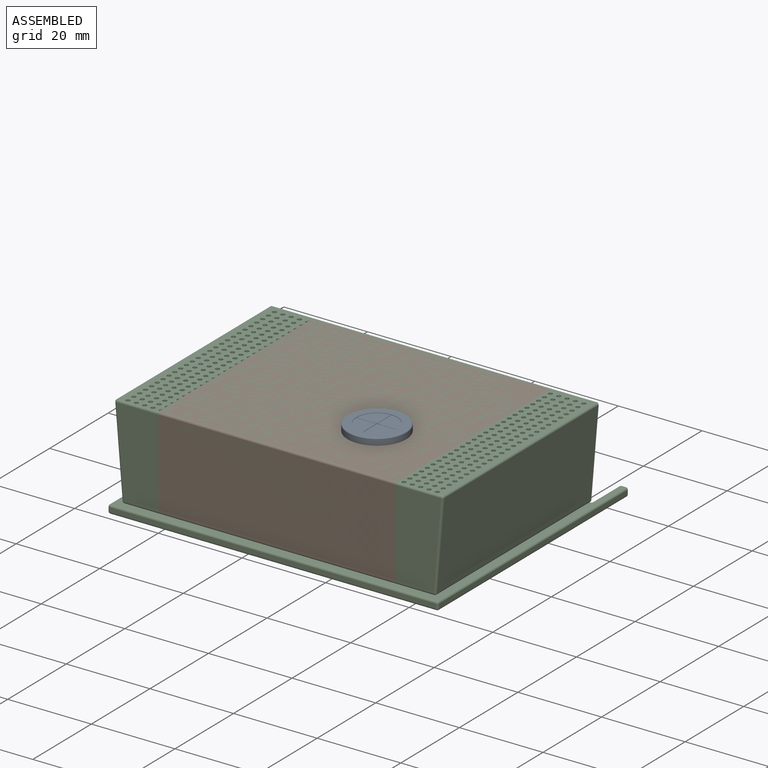
[diagram: assembled view]
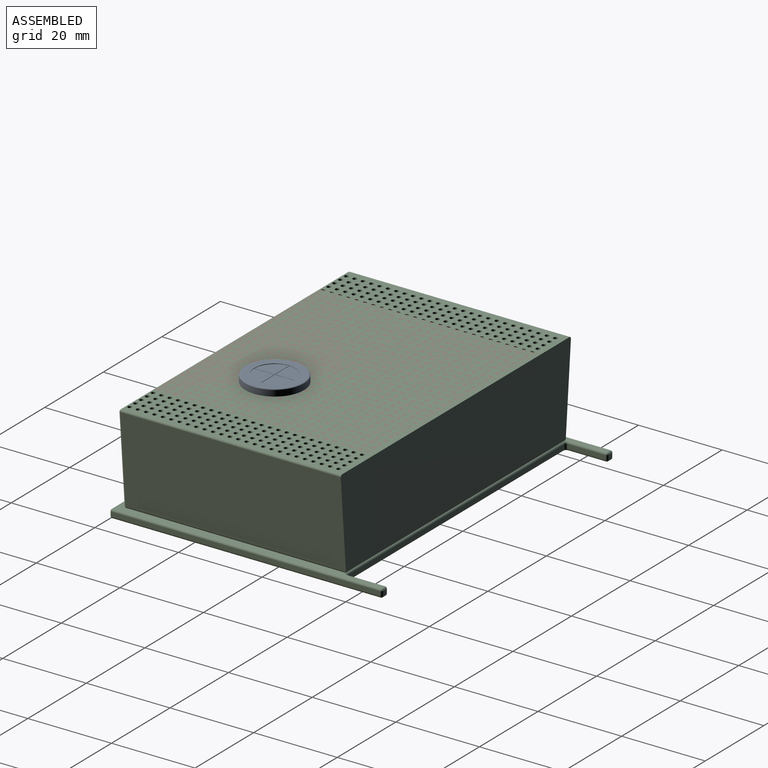
[diagram: assembled view, second angle]
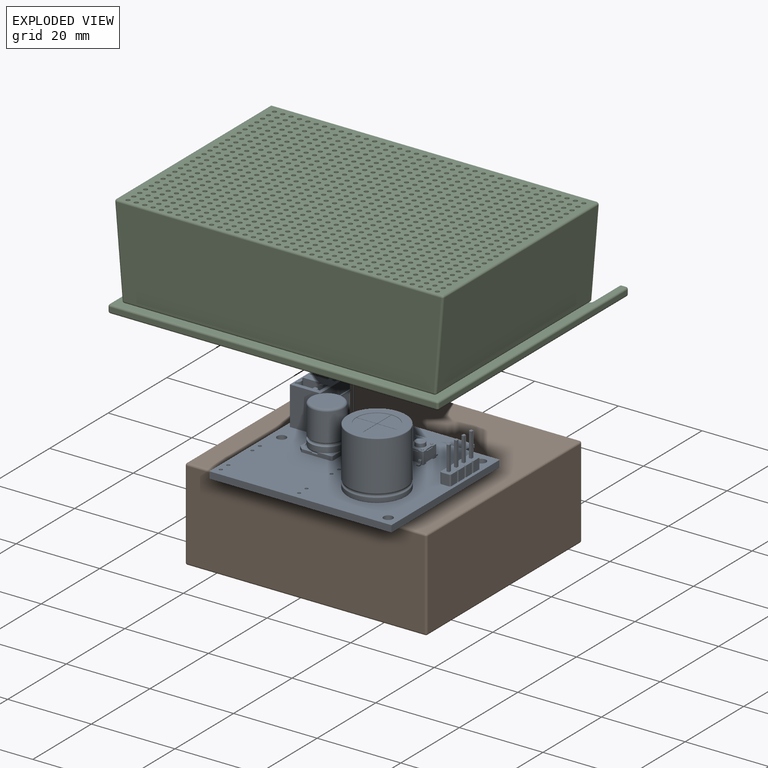
[diagram: exploded view]
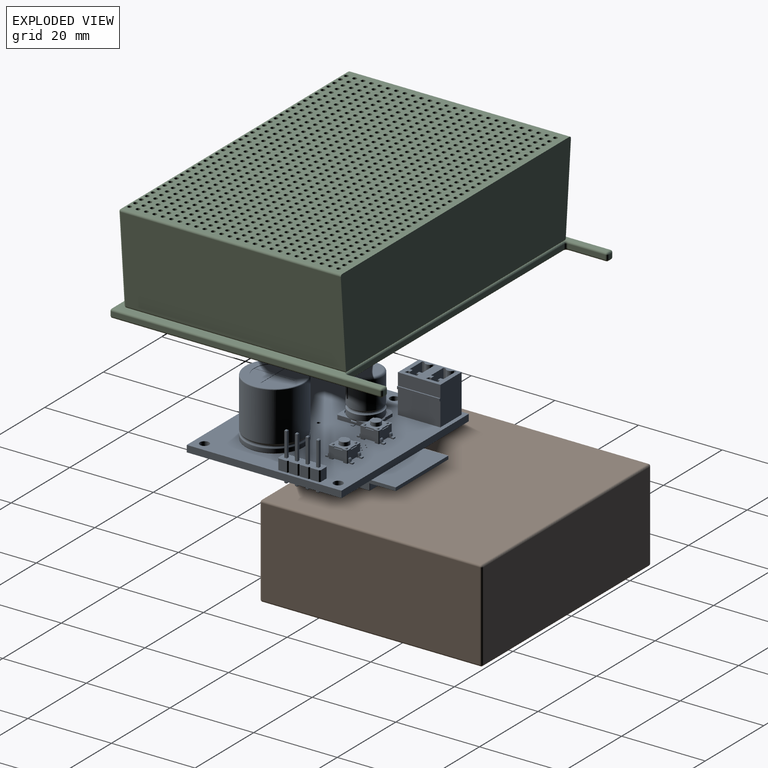
[diagram: exploded view, second angle]
FCSTD DOCUMENT  (FreeCAD 1.0R39285 (Git))
Label: siedle-bus
License: All rights reserved
LicenseURL: https://en.wikipedia.org/wiki/All_rights_reserved
objects: App::Link×23, Part::Feature×21, Sketcher::SketchObject×14, PartDesign::Pad×10, App::Part×8, PartDesign::Fillet×5, PartDesign::Body×5, PartDesign::ShapeBinder×4, PartDesign::SubShapeBinder×2, Part::Extrusion×2, PartDesign::FeatureBase×2, PartDesign::LinearPattern×2, PartDesign::CoordinateSystem×1, Spreadsheet::Sheet×1, PartDesign::Pocket×1, PartDesign::MultiTransform×1
note: 121 computed .brp shape members not serialized (recipe doc carries the construction recipe); baked Part::Feature solids carry a one-line shape summary decoded from their .brp

FEATURE [PartDesign::CoordinateSystem] Local_CS_cf86
  AttacherType = Attacher::AttachEngine3D
  MapMode = 2
FEATURE [Part::Feature] Pcb_cf86
  shape: bbox 43.5 x 37 x 1.6 mm, 37 faces (baked)
FEATURE [Sketcher::SketchObject] PCB_Sketch_cf86
  ArcFitTolerance = 1e-06
  AttachmentSupport = -> [Pcb_cf86]
  FullyConstrained = false
  MakeInternals = false
  MapMode = 5
  Placement = pos=(0,0,-1.6) rot=(1,0,0;3.14159rad)
  sketch-geometry (4):
    g0: LineSegment StartX=151.5 StartY=-90.5 StartZ=0 EndX=195 EndY=-90.5 EndZ=0
    g1: LineSegment StartX=195 StartY=-90.5 StartZ=0 EndX=195 EndY=-127.5 EndZ=0
    g2: LineSegment StartX=195 StartY=-127.5 StartZ=0 EndX=151.5 EndY=-127.5 EndZ=0
    g3: LineSegment StartX=151.5 StartY=-127.5 StartZ=0 EndX=151.5 EndY=-90.5 EndZ=0
  constraints (4):
    c: Coincident(g2,g3)
    c: Coincident(g0,g3)
    c: Coincident(g1,g2)
    c: Coincident(g0,g1)
FEATURE [App::Part] Board_Geoms_cf86
  Group = -> [Pcb_cf86,PCB_Sketch_cf86]
  Origin = -> Origin
FEATURE [Part::Feature] Shape  label="C2_CP_Radial_D140mm_P500mm_bf3500c36290"
  Placement = pos=(180.3,-115,0) rot=(0,0,1;0rad)
  shape: bbox 17.3 x 17.89 x 16 mm, 49 faces (baked)
FEATURE [Part::Feature] Part__Feature  label="SW_SPST_PTS647Sx38"
  shape: bbox 1 x 0.7 x 1.1 mm, 13 faces (baked)
FEATURE [Part::Feature] Part__Feature001  label="SW_SPST_PTS647Sx039"
  shape: bbox 1 x 0.7 x 1.1 mm, 13 faces (baked)
FEATURE [Part::Feature] Part__Feature002  label="SW_SPST_PTS647Sx040"
  shape: bbox 1 x 0.7 x 1.1 mm, 13 faces (baked)
FEATURE [Part::Feature] Part__Feature003  label="SW_SPST_PTS647Sx041"
  shape: bbox 1 x 0.7 x 1.1 mm, 13 faces (baked)
FEATURE [Part::Feature] Part__Feature004  label="SW_SPST_PTS647Sx042"
  shape: bbox 0.6 x 0.6 x 0.3 mm, 4 faces (baked)
FEATURE [Part::Feature] Part__Feature005  label="SW_SPST_PTS647Sx043"
  shape: bbox 4.5 x 4.5 x 2.6 mm, 22 faces (baked)
FEATURE [Part::Feature] Part__Feature006  label="SW_SPST_PTS647Sx044"
  shape: bbox 4.5 x 4.5 x 0.3 mm, 27 faces (baked)
FEATURE [Part::Feature] Part__Feature007  label="SW_SPST_PTS647Sx045"
  shape: bbox 2.49 x 2.49 x 1.2 mm, 4 faces (baked)
FEATURE [Part::Feature] Part__Feature008  label="SW_SPST_PTS647Sx046"
  shape: bbox 0.6 x 0.6 x 0.3 mm, 4 faces (baked)
FEATURE [Part::Feature] Part__Feature009  label="SW_SPST_PTS647Sx047"
  shape: bbox 0.6 x 0.6 x 0.3 mm, 4 faces (baked)
FEATURE [Part::Feature] Part__Feature010  label="SW_SPST_PTS647Sx048"
  shape: bbox 0.6 x 0.6 x 0.3 mm, 4 faces (baked)
FEATURE [App::Part] SW_SPST_PTS647Sx38  label="SW1_SW_SPST_PTS647Sx049_f47bb105fac6"
  Group = -> [Part__Feature,Part__Feature001,Part__Feature002,Part__Feature003,Part__Feature004,Part__Feature005,Part__Feature006,Part__Feature007,Part__Feature008,Part__Feature009,Part__Feature010]
  Origin = -> Origin008
  Placement = pos=(181.925,-98.925,0) rot=(0,0,1;1.5708rad)
FEATURE [Part::Feature] Shape001  label="J1_MCV_01x02_G_5_08mm_61fd933b89c3"
  Placement = pos=(155.5,-94,0) rot=(0,0,-1;1.5708rad)
  shape: bbox 7.55 x 10.16 x 12.6 mm, 76 faces (baked)
FEATURE [Part::Feature] Shape002  label="C3_CP_Elec_8x105_1722c731bef4"
  Placement = pos=(164.516,-106,0) rot=(0,0,1;0rad)
  shape: bbox 10.73 x 10.92 x 10.5 mm, 41 faces (baked)
FEATURE [App::Link] SW1_SW_SPST_PTS647Sx049_f47bb105fac6_ln_  label="SW2_SW_SPST_PTS647Sx049_382b9973bbcd"
  LinkPlacement = pos=(170.925,-99.075,0) rot=(0,0,1;1.5708rad)
  LinkedObject = -> SW_SPST_PTS647Sx38
  Placement = pos=(170.925,-99.075,0) rot=(0,0,1;1.5708rad)
FEATURE [Part::Feature] Shape003  label="program_port1_PinHeader_1x04_P254mm_Vertical_dfa3f7836187"
  Placement = pos=(193,-97.42,0) rot=(0,0,1;0rad)
  shape: bbox 2.54 x 10.16 x 11.54 mm, 100 faces (baked)
FEATURE [App::Part] Top_cf86
  Group = -> [Shape,SW_SPST_PTS647Sx38,Shape001,Shape002,SW1_SW_SPST_PTS647Sx049_f47bb105fac6_ln_,Shape003]
  Origin = -> Origin003
FEATURE [Part::Feature] Shape004  label="R16_R_0805_2012Metric_6440b10d6120"
  Placement = pos=(160,-123.588,-1.6) rot=(0.707107,-0.707107,0;3.14159rad)
  shape: bbox 1.2 x 2 x 0.45 mm, 26 faces (baked)
FEATURE [Part::Feature] Shape005  label="Q2_SOT_23_62dcdb62a1b2"
  Placement = pos=(188.5,-123.588,-1.6) rot=(0,1,0;3.14159rad)
  shape: bbox 2.5 x 3 x 1.2 mm, 76 faces (baked)
FEATURE [App::Link] Q2_SOT_23_62dcdb62a1b2_ln_  label="Q4_SOT_23_74dfaa049eca"
  LinkPlacement = pos=(163.938,-123.55,-1.6) rot=(0,1,0;3.14159rad)
  LinkedObject = -> Shape005
  Placement = pos=(163.938,-123.55,-1.6) rot=(0,1,0;3.14159rad)
FEATURE [Part::Feature] Shape006  label="D1_D_SMA_29086f7b7713"
  Placement = pos=(161.5,-97,-1.6) rot=(0.707107,0.707107,0;3.14159rad)
  shape: bbox 2.7 x 5 x 2.22 mm, 41 faces (baked)
FEATURE [App::Link] R16_R_0805_2012Metric_6440b10d6120_ln_  label="R8_R_0805_2012Metric_6a7fb8497b59"
  LinkPlacement = pos=(184,-122.675,-1.6) rot=(0.707107,0.707107,0;3.14159rad)
  LinkedObject = -> Shape004
  Placement = pos=(184,-122.675,-1.6) rot=(0.707107,0.707107,0;3.14159rad)
FEATURE [App::Link] R16_R_0805_2012Metric_6440b10d6120_ln_001  label="R1_R_0805_2012Metric_71a5ba1c3646"
  LinkPlacement = pos=(180,-118.175,-1.6) rot=(0.707107,-0.707107,0;3.14159rad)
  LinkedObject = -> Shape004
  Placement = pos=(180,-118.175,-1.6) rot=(0.707107,-0.707107,0;3.14159rad)
FEATURE [App::Link] Q2_SOT_23_62dcdb62a1b2_ln_001  label="Q3_SOT_23_93b365065ff6"
  LinkPlacement = pos=(179,-123.588,-1.6) rot=(0,1,0;3.14159rad)
  LinkedObject = -> Shape005
  Placement = pos=(179,-123.588,-1.6) rot=(0,1,0;3.14159rad)
FEATURE [App::Link] R16_R_0805_2012Metric_6440b10d6120_ln_002  label="R14_R_0805_2012Metric_2752517fc226"
  LinkPlacement = pos=(168.5,-118.55,-1.6) rot=(0.707107,-0.707107,0;3.14159rad)
  LinkedObject = -> Shape004
  Placement = pos=(168.5,-118.55,-1.6) rot=(0.707107,-0.707107,0;3.14159rad)
FEATURE [App::Link] R16_R_0805_2012Metric_6440b10d6120_ln_003  label="R5_R_0805_2012Metric_a1e1abe29b13"
  LinkPlacement = pos=(175.412,-118.588,-1.6) rot=(0,1,0;3.14159rad)
  LinkedObject = -> Shape004
  Placement = pos=(175.412,-118.588,-1.6) rot=(0,1,0;3.14159rad)
FEATURE [App::Link] R16_R_0805_2012Metric_6440b10d6120_ln_004  label="R11_R_0805_2012Metric_a54efc6a1e82"
  LinkPlacement = pos=(155,-118.588,-1.6) rot=(0.707107,-0.707107,0;3.14159rad)
  LinkedObject = -> Shape004
  Placement = pos=(155,-118.588,-1.6) rot=(0.707107,-0.707107,0;3.14159rad)
FEATURE [App::Link] R16_R_0805_2012Metric_6440b10d6120_ln_005  label="R7_R_0805_2012Metric_d04bd2d9ffe6"
  LinkPlacement = pos=(184.912,-118.588,-1.6) rot=(0,1,0;3.14159rad)
  LinkedObject = -> Shape004
  Placement = pos=(184.912,-118.588,-1.6) rot=(0,1,0;3.14159rad)
FEATURE [App::Link] R16_R_0805_2012Metric_6440b10d6120_ln_006  label="R13_R_0805_2012Metric_41c53c07d35b"
  LinkPlacement = pos=(159.5,-118.588,-1.6) rot=(0.707107,-0.707107,0;3.14159rad)
  LinkedObject = -> Shape004
  Placement = pos=(159.5,-118.588,-1.6) rot=(0.707107,-0.707107,0;3.14159rad)
FEATURE [App::Link] R16_R_0805_2012Metric_6440b10d6120_ln_007  label="R6_R_0805_2012Metric_94e2af22b777"
  LinkPlacement = pos=(189.5,-118.588,-1.6) rot=(0.707107,-0.707107,0;3.14159rad)
  LinkedObject = -> Shape004
  Placement = pos=(189.5,-118.588,-1.6) rot=(0.707107,-0.707107,0;3.14159rad)
FEATURE [Part::Feature] Shape007  label="U2_ESP32-WROOM-32_230d09674df7"
  Placement = pos=(175.845,-100.385,-1.6) rot=(0,1,0;3.14159rad)
  shape: bbox 18 x 25.5 x 3.1 mm, 751 faces (baked)
FEATURE [App::Link] D1_D_SMA_29086f7b7713_ln_  label="D2_D_SMA_4362d2d0da3b"
  LinkPlacement = pos=(158,-111,-1.6) rot=(1,0,0;3.14159rad)
  LinkedObject = -> Shape006
  Placement = pos=(158,-111,-1.6) rot=(1,0,0;3.14159rad)
FEATURE [App::Link] R16_R_0805_2012Metric_6440b10d6120_ln_008  label="R12_R_0805_2012Metric_293eb04cf4b3"
  LinkPlacement = pos=(164,-118.55,-1.6) rot=(0.707107,-0.707107,0;3.14159rad)
  LinkedObject = -> Shape004
  Placement = pos=(164,-118.55,-1.6) rot=(0.707107,-0.707107,0;3.14159rad)
FEATURE [App::Link] Q2_SOT_23_62dcdb62a1b2_ln_002  label="Q1_SOT_23_f58ad7d48d82"
  LinkPlacement = pos=(161.5,-104,-1.6) rot=(0,1,0;3.14159rad)
  LinkedObject = -> Shape005
  Placement = pos=(161.5,-104,-1.6) rot=(0,1,0;3.14159rad)
FEATURE [Part::Feature] Shape008  label="C10_C_0805_2012Metric_02b46ca5451d"
  Placement = pos=(188,-100.45,-1.6) rot=(0.707107,0.707107,0;3.14159rad)
  shape: bbox 1.25 x 2 x 1.25 mm, 28 faces (baked)
FEATURE [App::Link] Q2_SOT_23_62dcdb62a1b2_ln_003  label="Q5_SOT_23_db859e6570a3"
  LinkPlacement = pos=(155.938,-123.55,-1.6) rot=(0,1,0;3.14159rad)
  LinkedObject = -> Shape005
  Placement = pos=(155.938,-123.55,-1.6) rot=(0,1,0;3.14159rad)
FEATURE [App::Link] R16_R_0805_2012Metric_6440b10d6120_ln_009  label="R2_R_0805_2012Metric_c388abc20c30"
  LinkPlacement = pos=(157.95,-103.963,-1.6) rot=(0.707107,-0.707107,0;3.14159rad)
  LinkedObject = -> Shape004
  Placement = pos=(157.95,-103.963,-1.6) rot=(0.707107,-0.707107,0;3.14159rad)
FEATURE [App::Link] R16_R_0805_2012Metric_6440b10d6120_ln_010  label="R3_R_0805_2012Metric_10d4624a09ee"
  LinkPlacement = pos=(162.863,-108,-1.6) rot=(0,1,0;3.14159rad)
  LinkedObject = -> Shape004
  Placement = pos=(162.863,-108,-1.6) rot=(0,1,0;3.14159rad)
FEATURE [App::Link] C10_C_0805_2012Metric_02b46ca5451d_ln_  label="C11_C_0805_2012Metric_8290f20e4566"
  LinkPlacement = pos=(188,-92.95,-1.6) rot=(0.707107,-0.707107,0;3.14159rad)
  LinkedObject = -> Shape008
  Placement = pos=(188,-92.95,-1.6) rot=(0.707107,-0.707107,0;3.14159rad)
FEATURE [App::Link] R16_R_0805_2012Metric_6440b10d6120_ln_011  label="R4_R_0805_2012Metric_07bc5c32d8f0"
  LinkPlacement = pos=(158.863,-108,-1.6) rot=(0,1,0;3.14159rad)
  LinkedObject = -> Shape004
  Placement = pos=(158.863,-108,-1.6) rot=(0,1,0;3.14159rad)
FEATURE [App::Link] R16_R_0805_2012Metric_6440b10d6120_ln_012  label="R15_R_0805_2012Metric_e89ab2faa967"
  LinkPlacement = pos=(168.5,-123.588,-1.6) rot=(0.707107,-0.707107,0;3.14159rad)
  LinkedObject = -> Shape004
  Placement = pos=(168.5,-123.588,-1.6) rot=(0.707107,-0.707107,0;3.14159rad)
FEATURE [App::Link] C10_C_0805_2012Metric_02b46ca5451d_ln_001  label="C1_C_0805_2012Metric_c4d2956135fc"
  LinkPlacement = pos=(160.95,-114,-1.6) rot=(0,1,0;3.14159rad)
  LinkedObject = -> Shape008
  Placement = pos=(160.95,-114,-1.6) rot=(0,1,0;3.14159rad)
FEATURE [App::Link] R16_R_0805_2012Metric_6440b10d6120_ln_013  label="R10_R_0805_2012Metric_31cf3dce586b"
  LinkPlacement = pos=(188,-96.5875,-1.6) rot=(0.707107,-0.707107,0;3.14159rad)
  LinkedObject = -> Shape004
  Placement = pos=(188,-96.5875,-1.6) rot=(0.707107,-0.707107,0;3.14159rad)
FEATURE [App::Link] R16_R_0805_2012Metric_6440b10d6120_ln_014  label="R9_R_0805_2012Metric_2225ed5e370b"
  LinkPlacement = pos=(174.5,-122.587,-1.6) rot=(0.707107,0.707107,0;3.14159rad)
  LinkedObject = -> Shape004
  Placement = pos=(174.5,-122.587,-1.6) rot=(0.707107,0.707107,0;3.14159rad)
FEATURE [App::Part] Bot_cf86
  Group = -> [Shape004,Shape005,Q2_SOT_23_62dcdb62a1b2_ln_,Shape006,R16_R_0805_2012Metric_6440b10d6120_ln_,R16_R_0805_2012Metric_6440b10d6120_ln_001,Q2_SOT_23_62dcdb62a1b2_ln_001,R16_R_0805_2012Metric_6440b10d6120_ln_002,R16_R_0805_2012Metric_6440b10d6120_ln_003,R16_R_0805_2012Metric_6440b10d6120_ln_004,R16_R_0805_2012Metric_6440b10d6120_ln_005,R16_R_0805_2012Metric_6440b10d6120_ln_006,+15 more]
  Origin = -> Origin004
FEATURE [App::Part] Step_Models_cf86
  Group = -> [Top_cf86,Bot_cf86]
  Origin = -> Origin002
FEATURE [App::Part] Board_cf86  label="siedle-bus"
  Group = -> [Local_CS_cf86,Board_Geoms_cf86,Step_Models_cf86]
  Origin = -> Origin001
FEATURE [Spreadsheet::Sheet] Spreadsheet  label="Settings"
  cells = A1='Variable; B1='Value; A2='PCB_side_margin; B2(PCB_side_margin)==1 mm; A3='Antena_size; B3(Antena_size)==1 cm; A4='Inside_screw_holes; B4(Inside_screw_holes)==1.6 mm; A5='pcb_tickness; B5(pcb_tickness)==2 mm; A6='pcb_components_bottom; B6(pcb_components_bottom)==6 mm; A7='pcb_components_top; B7(pcb_components_top)==10 mm; A8='cage_thickness; B8(cage_thickness)==2 mm; A9='space_for_cables; B9(space_for_cables)==7 mm; A10='cage_screws_head_diameter; B10(cage_screws_head_diameter)==7 mm; A11='cage_screws_hole_diameter; B11(cage_screws_hole_diameter)==4 mm; A12='cage_slack; B12(cage_slack)==0.15 mm; A13='fillet_diameter; B13(fillet_diameter)==0.5 mm; A14='Siedle_wide_bottom; B14(Siedle_wide_bottom)==75 mm; A15='Siedle_wide_top; B15(Siedle_wide_top)==78.7 mm; A16='pattern_hole_diameter; B16(pattern_hole_diameter)==1 mm; A17='pattern_hole_length; B17(pattern_hole_length)==1 mm; A18='pattern_hole_offset; B18(pattern_hole_offset)==2 mm
FEATURE [PartDesign::SubShapeBinder] Binder  label="PCB"
  BindCopyOnChange = 0
  BindMode = 0
  ClaimChildren = false
  Context = -> Part [Binder.]
  Fuse = false
  MakeFace = true
  OffsetFill = false
  OffsetIntersection = false
  OffsetJoinType = 0
  OffsetOpenResult = false
  PartialLoad = false
  Refine = true
  Relative = true
  Support = -> [Board_cf86]
  _Version = 2
FEATURE [Sketcher::SketchObject] Sketch  label="PCB_bottom_mini"
  ArcFitTolerance = 1e-06
  AttachmentSupport = -> [Binder]
  ExternalGeometry = -> [Binder]
  FullyConstrained = false
  MakeInternals = false
  MapMode = 5
  Placement = pos=(0,0,-1.6) rot=(1,0,0;3.14159rad)
  expr: Constraints[10] = Spreadsheet.space_for_cables
  expr: Constraints[11] = Spreadsheet.PCB_side_margin
  expr: Constraints[12] = Spreadsheet.PCB_side_margin
  expr: Constraints[13] = Spreadsheet.Inside_screw_holes
  expr: Constraints[14] = Spreadsheet.Inside_screw_holes
  expr: Constraints[17] = Spreadsheet.Inside_screw_holes
  expr: Constraints[9] = Spreadsheet.PCB_side_margin
  sketch-geometry (29):
    g0: Circle CenterX=192.5 CenterY=125 CenterZ=0 NormalX=0 NormalY=0 NormalZ=1 AngleXU=0 Radius=0.8
    g1: LineSegment [constr] StartX=196 StartY=128.5 StartZ=0 EndX=144.5 EndY=128.5 EndZ=0
    g2: LineSegment [constr] StartX=144.5 StartY=128.5 StartZ=0 EndX=144.5 EndY=83.64 EndZ=0
    g3: LineSegment [constr] StartX=144.5 StartY=83.64 StartZ=0 EndX=196 EndY=83.64 EndZ=0
    g4: LineSegment [constr] StartX=196 StartY=83.64 StartZ=0 EndX=196 EndY=128.5 EndZ=0
    g5: Circle CenterX=154.058 CenterY=106.499 CenterZ=0 NormalX=0 NormalY=0 NormalZ=1 AngleXU=0 Radius=0.8
    g6: Circle CenterX=192.454 CenterY=93.0512 CenterZ=0 NormalX=0 NormalY=0 NormalZ=1 AngleXU=0 Radius=0.8
    g7: ArcOfCircle CenterX=192.5 CenterY=125 CenterZ=0 NormalX=0 NormalY=0 NormalZ=1 AngleXU=0 Radius=2.5 StartAngle=3.14159 EndAngle=4.71239
    g8: LineSegment StartX=192.5 StartY=122.5 StartZ=0 EndX=196 EndY=122.5 EndZ=0
    g9: LineSegment [constr] StartX=190 StartY=125 StartZ=0 EndX=192.5 EndY=125 EndZ=0
    g10: LineSegment [constr] StartX=192.5 StartY=125 StartZ=0 EndX=192.5 EndY=122.5 EndZ=0
    g11: Circle [constr] CenterX=192.5 CenterY=125 CenterZ=0 NormalX=0 NormalY=0 NormalZ=1 AngleXU=0 Radius=2.5
    g12: LineSegment StartX=190 StartY=125 StartZ=0 EndX=190 EndY=128.5 EndZ=0
    g13: LineSegment StartX=190 StartY=128.5 StartZ=0 EndX=196 EndY=128.5 EndZ=0
    g14: LineSegment StartX=196 StartY=122.5 StartZ=0 EndX=196 EndY=128.5 EndZ=0
    g15: Circle [constr] CenterX=192.454 CenterY=93.0512 CenterZ=0 NormalX=0 NormalY=0 NormalZ=1 AngleXU=0 Radius=2.55121
    g16: Circle [constr] CenterX=154.058 CenterY=106.499 CenterZ=0 NormalX=0 NormalY=0 NormalZ=1 AngleXU=0 Radius=2.55802
    g17: ArcOfCircle CenterX=154.058 CenterY=106.499 CenterZ=0 NormalX=0 NormalY=0 NormalZ=1 AngleXU=0 Radius=2.55802 StartAngle=4.71239 EndAngle=7.85398
    g18: LineSegment StartX=154.058 StartY=103.941 StartZ=0 EndX=144.5 EndY=103.941 EndZ=0
    g19: LineSegment StartX=154.058 StartY=109.057 StartZ=0 EndX=144.5 EndY=109.057 EndZ=0
    g20: LineSegment StartX=144.5 StartY=103.941 StartZ=0 EndX=144.5 EndY=109.057 EndZ=0
    g21: LineSegment [constr] StartX=154.058 StartY=103.941 StartZ=0 EndX=154.058 EndY=109.057 EndZ=0
    g22: ArcOfCircle CenterX=192.454 CenterY=93.0512 CenterZ=0 NormalX=0 NormalY=0 NormalZ=1 AngleXU=0 Radius=2.55121 StartAngle=1.5708 EndAngle=3.14159
    g23: LineSegment [constr] StartX=192.454 StartY=95.6024 StartZ=0 EndX=192.454 EndY=93.0512 EndZ=0
    g24: LineSegment [constr] StartX=189.902 StartY=93.0512 StartZ=0 EndX=192.502 EndY=93.0512 EndZ=0
    g25: LineSegment StartX=192.454 StartY=95.6024 StartZ=0 EndX=196 EndY=95.6024 EndZ=0
    g26: LineSegment StartX=189.902 StartY=93.0512 StartZ=0 EndX=189.902 EndY=83.64 EndZ=0
    g27: LineSegment StartX=189.902 StartY=83.64 StartZ=0 EndX=196 EndY=83.64 EndZ=0
    g28: LineSegment StartX=196 StartY=95.6024 StartZ=0 EndX=196 EndY=83.64 EndZ=0
  constraints (74):
    c: Coincident(g0,g-3)
    c: Coincident(g1,g2)
    c: Coincident(g2,g3)
    c: Coincident(g3,g4)
    c: Coincident(g4,g1)
    c: Horizontal(g1)
    c: Horizontal(g3)
    c: Vertical(g2)
    c: Vertical(g4)
    c: Distance(g1,g-8) = 1
    c: Distance(g2,g-9) = 7
    c: Distance(g4,g-7) = 1
    c: Distance(g-10,g3) = 1
    c: Diameter(g0) = 1.6
    c: Diameter(g5) = 1.6
    c: Coincident(g5,g-4)
    c: Coincident(g6,g-5)
    c: Diameter(g6) = 1.6
    c: PointOnObject(g8,g4)
    c: Horizontal(g8)
    c: Coincident(g9,g7)
    c: Coincident(g9,g7)
    c: Coincident(g10,g7)
    c: Coincident(g10,g7)
    c: Coincident(g7,g8)
    c: Coincident(g7,g0)
    c: Coincident(g11,g0)
    c: Tangent(g11,g-8)
    c: Coincident(g12,g7)
    c: PointOnObject(g12,g1)
    c: Vertical(g12)
    c: Coincident(g13,g12)
    c: Coincident(g13,g1)
    c: Coincident(g14,g8)
    c: Coincident(g14,g1)
    c: Tangent(g11,g8)
    c: Tangent(g12,g11)
    c: Vertical(g10)
    c: Coincident(g15,g6)
    c: Tangent(g15,g-6)
    c: Coincident(g16,g5)
    c: Tangent(g16,g-9)
    c: Coincident(g17,g5)
    c: Coincident(g18,g17)
    c: PointOnObject(g18,g2)
    c: Horizontal(g18)
    c: Coincident(g19,g17)
    c: PointOnObject(g19,g2)
    c: Horizontal(g19)
    c: Coincident(g20,g18)
    c: Coincident(g20,g19)
    c: Tangent(g18,g16)
    c: Coincident(g21,g17)
    c: Coincident(g21,g17)
    c: Vertical(g21)
    c: PointOnObject(g5,g21)
    c: Coincident(g22,g6)
    c: Coincident(g23,g22)
    c: Coincident(g23,g6)
    c: Vertical(g23)
    c: Coincident(g24,g22)
    c: Horizontal(g24)
    c: Coincident(g25,g22)
    c: PointOnObject(g25,g4)
    c: Horizontal(g25)
    c: Coincident(g26,g22)
    c: PointOnObject(g26,g3)
    c: Vertical(g26)
    c: Coincident(g27,g26)
    c: Coincident(g27,g3)
    c: Coincident(g28,g25)
    c: Coincident(g28,g3)
    c: Tangent(g26,g15)
    c: Tangent(g25,g15)
FEATURE [Part::Extrusion] Extrude
  Base = -> Sketch
  Dir = (0,0,-1)
  DirMode = 2
  FaceMakerClass = Part::FaceMakerBullseye
  FaceMakerMode = 3
  LengthFwd = 6
  LengthRev = 0
  Solid = true
  Symmetric = false
  expr: LengthFwd = Spreadsheet.pcb_components_bottom
FEATURE [PartDesign::FeatureBase] BaseFeature
  BaseFeature = -> Extrude
  Suppressed = false
FEATURE [Sketcher::SketchObject] Sketch001
  ArcFitTolerance = 1e-06
  AttachmentSupport = -> [BaseFeature]
  ExternalGeometry = -> [BaseFeature,Binder]
  FullyConstrained = true
  MakeInternals = false
  MapMode = 5
  Placement = pos=(0,0,-7.6) rot=(1,0,0;3.14159rad)
  expr: Constraints[10] = Spreadsheet.cage_thickness
  expr: Constraints[16] = Spreadsheet.cage_thickness
  expr: Constraints[18] = Spreadsheet.space_for_cables
  expr: Constraints[25] = Spreadsheet.cage_thickness
  expr: Constraints[26] = Spreadsheet.cage_screws_head_diameter
  expr: Constraints[27] = Spreadsheet.cage_screws_head_diameter
  expr: Constraints[28] = Spreadsheet.cage_screws_head_diameter
  expr: Constraints[32] = Spreadsheet.cage_screws_hole_diameter
  expr: Constraints[33] = Spreadsheet.cage_screws_hole_diameter
  expr: Constraints[34] = Spreadsheet.cage_screws_hole_diameter
  expr: Constraints[8] = Spreadsheet.cage_thickness
  expr: Constraints[9] = Spreadsheet.cage_thickness
  sketch-geometry (20):
    g0: LineSegment StartX=198 StartY=130.5 StartZ=0 EndX=146.5 EndY=130.5 EndZ=0
    g1: LineSegment StartX=146.5 StartY=130.5 StartZ=0 EndX=146.5 EndY=81.64 EndZ=0
    g2: LineSegment StartX=146.5 StartY=81.64 StartZ=0 EndX=198 EndY=81.64 EndZ=0
    g3: LineSegment StartX=198 StartY=81.64 StartZ=0 EndX=198 EndY=130.5 EndZ=0
    g4: ArcOfCircle CenterX=152 CenterY=98.855 CenterZ=0 NormalX=0 NormalY=0 NormalZ=1 AngleXU=0 Radius=3.5 StartAngle=-6.22e-14 EndAngle=3.14159
    g5: ArcOfCircle CenterX=152 CenterY=94.225 CenterZ=0 NormalX=0 NormalY=0 NormalZ=1 AngleXU=0 Radius=3.5 StartAngle=3.14159 EndAngle=6.28319
    g6: LineSegment StartX=155.5 StartY=98.855 StartZ=0 EndX=155.5 EndY=94.225 EndZ=0
    g7: LineSegment StartX=148.5 StartY=98.855 StartZ=0 EndX=148.5 EndY=94.225 EndZ=0
    g8: LineSegment [constr] StartX=152 StartY=98.855 StartZ=0 EndX=155.725 EndY=98.855 EndZ=0
    g9: LineSegment [constr] StartX=152 StartY=94.225 StartZ=0 EndX=155.275 EndY=94.225 EndZ=0
    g10: Circle [constr] CenterX=192.5 CenterY=106.499 CenterZ=0 NormalX=0 NormalY=0 NormalZ=1 AngleXU=0 Radius=3.5
    g11: Circle [constr] CenterX=148 CenterY=125 CenterZ=0 NormalX=0 NormalY=0 NormalZ=1 AngleXU=0 Radius=3.5
    g12: Circle [constr] CenterX=148 CenterY=87.14 CenterZ=0 NormalX=0 NormalY=0 NormalZ=1 AngleXU=0 Radius=3.5
    g13: Circle CenterX=148 CenterY=87.14 CenterZ=0 NormalX=0 NormalY=0 NormalZ=1 AngleXU=0 Radius=2
    g14: Circle CenterX=148 CenterY=125 CenterZ=0 NormalX=0 NormalY=0 NormalZ=1 AngleXU=0 Radius=2
    g15: Circle CenterX=192.5 CenterY=106.499 CenterZ=0 NormalX=0 NormalY=0 NormalZ=1 AngleXU=0 Radius=2
    g16: LineSegment [constr] StartX=196 StartY=128.5 StartZ=0 EndX=144.5 EndY=128.5 EndZ=0
    g17: LineSegment [constr] StartX=144.5 StartY=128.5 StartZ=0 EndX=144.5 EndY=83.64 EndZ=0
    g18: LineSegment [constr] StartX=144.5 StartY=83.64 StartZ=0 EndX=196 EndY=83.64 EndZ=0
    g19: LineSegment [constr] StartX=196 StartY=83.64 StartZ=0 EndX=196 EndY=128.5 EndZ=0
  constraints (51):
    c: Coincident(g0,g1)
    c: Coincident(g1,g2)
    c: Coincident(g2,g3)
    c: Coincident(g3,g0)
    c: Horizontal(g0)
    c: Horizontal(g2)
    c: Vertical(g1)
    c: Vertical(g3)
    c: Distance(g3,g-3) = 2
    c: Distance(g-5,g2) = 2
    c: Distance(g0,g-4) = 2
    c: Tangent(g4,g6) = 1.5708
    c: Tangent(g5,g6) = 1.5708
    c: Tangent(g5,g7) = -1.5708
    c: Equal(g4,g5)
    c: Tangent(g7,g4) = -1.5708
    c: Distance(g4,g1) = 2
    c: Parallel(g1,g7)
    c: Distance(g6,g7) = 7
    c: Coincident(g8,g4)
    c: Coincident(g8,g-11)
    c: Horizontal(g8)
    c: Coincident(g9,g5)
    c: Coincident(g9,g-9)
    c: Horizontal(g9)
    c: Distance(g-7,g1) = 2
    c: Diameter(g11) = 7
    c: Diameter(g10) = 7
    c: Diameter(g12) = 7
    c: Coincident(g15,g10)
    c: Coincident(g11,g14)
    c: Coincident(g13,g12)
    c: Diameter(g13) = 4
    c: Diameter(g14) = 4
    c: Diameter(g15) = 4
    c: Horizontal(g10,g-12)
    c: Coincident(g16,g17)
    c: Coincident(g17,g18)
    c: Coincident(g18,g19)
    c: Coincident(g19,g16)
    c: Horizontal(g16)
    c: Horizontal(g18)
    c: Vertical(g17)
    c: Coincident(g16,g-4)
    c: Coincident(g18,g-6)
    c: PointOnObject(g-7,g17)
    c: Tangent(g11,g16)
    c: Tangent(g17,g11)
    c: Tangent(g12,g18)
    c: Tangent(g12,g17)
    c: Tangent(g19,g10)
FEATURE [PartDesign::Pad] Pad  label="cage_bottom"
  BaseFeature = -> BaseFeature
  Direction = (0,0,-1)
  Length = 2
  Length2 = 10
  Profile = -> Sketch001
  ReferenceAxis = -> Sketch001 [N_Axis]
  Refine = true
  Suppressed = false
  Type = 0
  expr: Length = Spreadsheet.cage_thickness
FEATURE [Sketcher::SketchObject] Sketch002
  ArcFitTolerance = 1e-06
  AttachmentSupport = -> [Pad]
  ExternalGeometry = -> [Pad]
  FullyConstrained = true
  MakeInternals = false
  MapMode = 5
  Placement = pos=(0,0,-7.6) rot=(0,0,1;0rad)
  sketch-geometry (8):
    g0: LineSegment StartX=196 StartY=-83.64 StartZ=0 EndX=146.5 EndY=-83.64 EndZ=0
    g1: LineSegment StartX=146.5 StartY=-83.64 StartZ=0 EndX=146.5 EndY=-128.5 EndZ=0
    g2: LineSegment StartX=146.5 StartY=-128.5 StartZ=0 EndX=196 EndY=-128.5 EndZ=0
    g3: LineSegment StartX=196 StartY=-128.5 StartZ=0 EndX=196 EndY=-83.64 EndZ=0
    g4: LineSegment StartX=198 StartY=-81.64 StartZ=0 EndX=144.5 EndY=-81.64 EndZ=0
    g5: LineSegment StartX=144.5 StartY=-81.64 StartZ=0 EndX=144.5 EndY=-130.5 EndZ=0
    g6: LineSegment StartX=144.5 StartY=-130.5 StartZ=0 EndX=198 EndY=-130.5 EndZ=0
    g7: LineSegment StartX=198 StartY=-130.5 StartZ=0 EndX=198 EndY=-81.64 EndZ=0
  constraints (20):
    c: Coincident(g0,g1)
    c: Coincident(g1,g2)
    c: Coincident(g2,g3)
    c: Coincident(g3,g0)
    c: Horizontal(g0)
    c: Vertical(g1)
    c: Vertical(g3)
    c: Coincident(g0,g-11)
    c: Coincident(g4,g5)
    c: Coincident(g5,g6)
    c: Coincident(g6,g7)
    c: Coincident(g7,g4)
    c: Horizontal(g4)
    c: Horizontal(g6)
    c: Vertical(g5)
    c: Vertical(g7)
    c: Coincident(g4,g-6)
    c: Coincident(g5,g-5)
    c: PointOnObject(g-9,g1)
    c: Tangent(g2,g-8)
FEATURE [PartDesign::Pad] Pad001  label="cage_walls"
  BaseFeature = -> Pad
  Direction = (0,0,1)
  Length = 18
  Length2 = 10
  Profile = -> Sketch002
  ReferenceAxis = -> Sketch002 [N_Axis]
  Refine = true
  Suppressed = false
  Type = 0
  expr: Length = Spreadsheet.pcb_components_bottom + Spreadsheet.pcb_tickness + Spreadsheet.pcb_components_top
FEATURE [PartDesign::ShapeBinder] ShapeBinder001  label="inside_shapebinder"
  Support = -> [Pad001]
  TraceSupport = false
FEATURE [Sketcher::SketchObject] Sketch003
  ArcFitTolerance = 1e-06
  AttachmentSupport = -> [ShapeBinder001]
  ExternalGeometry = -> [ShapeBinder001]
  FullyConstrained = true
  MakeInternals = false
  MapMode = 5
  Placement = pos=(0,0,10.4) rot=(0,0,1;0rad)
  expr: Constraints[10] = Spreadsheet.cage_slack + Spreadsheet.cage_thickness
  expr: Constraints[11] = Spreadsheet.cage_slack + Spreadsheet.cage_thickness
  expr: Constraints[8] = Spreadsheet.cage_slack + Spreadsheet.cage_thickness
  expr: Constraints[9] = Spreadsheet.cage_slack + Spreadsheet.cage_thickness
  sketch-geometry (4):
    g0: LineSegment StartX=200.15 StartY=-79.49 StartZ=0 EndX=142.35 EndY=-79.49 EndZ=0
    g1: LineSegment StartX=142.35 StartY=-79.49 StartZ=0 EndX=142.35 EndY=-132.65 EndZ=0
    g2: LineSegment StartX=142.35 StartY=-132.65 StartZ=0 EndX=200.15 EndY=-132.65 EndZ=0
    g3: LineSegment StartX=200.15 StartY=-132.65 StartZ=0 EndX=200.15 EndY=-79.49 EndZ=0
  constraints (12):
    c: Coincident(g0,g1)
    c: Coincident(g1,g2)
    c: Coincident(g2,g3)
    c: Coincident(g3,g0)
    c: Horizontal(g0)
    c: Horizontal(g2)
    c: Vertical(g1)
    c: Vertical(g3)
    c: Distance(g3,g-5) = 2.15
    c: Distance(g-4,g2) = 2.15
    c: Distance(g0,g-3) = 2.15
    c: Distance(g1,g-6) = 2.15
FEATURE [PartDesign::Pad] Pad002  label="cover"
  Direction = (0,0,1)
  Length = 2
  Length2 = 10
  Profile = -> Sketch003
  ReferenceAxis = -> Sketch003 [N_Axis]
  Refine = true
  Suppressed = false
  Type = 0
  expr: Length = Spreadsheet.cage_thickness
FEATURE [Sketcher::SketchObject] Sketch004
  ArcFitTolerance = 1e-06
  AttachmentSupport = -> [Pad002]
  ExternalGeometry = -> [Pad002]
  FullyConstrained = true
  MakeInternals = false
  MapMode = 5
  Placement = pos=(0,0,10.4) rot=(1,0,0;3.14159rad)
  expr: Constraints[18] = Spreadsheet.cage_thickness
  expr: Constraints[19] = Spreadsheet.cage_thickness
  expr: Constraints[20] = Spreadsheet.cage_thickness
  expr: Constraints[21] = Spreadsheet.cage_thickness
  sketch-geometry (8):
    g0: LineSegment StartX=200.15 StartY=132.65 StartZ=0 EndX=142.35 EndY=132.65 EndZ=0
    g1: LineSegment StartX=142.35 StartY=132.65 StartZ=0 EndX=142.35 EndY=79.49 EndZ=0
    g2: LineSegment StartX=142.35 StartY=79.49 StartZ=0 EndX=200.15 EndY=79.49 EndZ=0
    g3: LineSegment StartX=200.15 StartY=79.49 StartZ=0 EndX=200.15 EndY=132.65 EndZ=0
    g4: LineSegment StartX=198.15 StartY=130.65 StartZ=0 EndX=144.35 EndY=130.65 EndZ=0
    g5: LineSegment StartX=144.35 StartY=130.65 StartZ=0 EndX=144.35 EndY=81.49 EndZ=0
    g6: LineSegment StartX=144.35 StartY=81.49 StartZ=0 EndX=198.15 EndY=81.49 EndZ=0
    g7: LineSegment StartX=198.15 StartY=81.49 StartZ=0 EndX=198.15 EndY=130.65 EndZ=0
  constraints (22):
    c: Coincident(g0,g1)
    c: Coincident(g1,g2)
    c: Coincident(g2,g3)
    c: Coincident(g3,g0)
    c: Horizontal(g0)
    c: Horizontal(g2)
    c: Vertical(g1)
    c: Vertical(g3)
    c: Coincident(g-4,g0)
    c: Coincident(g1,g-6)
    c: Coincident(g4,g5)
    c: Coincident(g5,g6)
    c: Coincident(g6,g7)
    c: Coincident(g7,g4)
    c: Horizontal(g4)
    c: Horizontal(g6)
    c: Vertical(g5)
    c: Vertical(g7)
    c: Distance(g3,g7) = 2
    c: Distance(g5,g1) = 2
    c: Distance(g6,g2) = 2
    c: Distance(g0,g4) = 2
FEATURE [PartDesign::Pad] Pad003  label="cover_walls"
  BaseFeature = -> Pad002
  Direction = (0,0,-1)
  Length = 20
  Length2 = 10
  Profile = -> Sketch004
  ReferenceAxis = -> Sketch004 [N_Axis]
  Refine = true
  Suppressed = false
  Type = 0
  expr: Length = Spreadsheet.cage_thickness + Spreadsheet.pcb_components_bottom + Spreadsheet.pcb_tickness + Spreadsheet.pcb_components_top
FEATURE [PartDesign::Fillet] Fillet
  Base = -> Pad003 [Edge1,Edge2,Edge3,Edge4,Edge5,Edge6,Edge7,Edge8,Edge9,Edge10,Edge11,Edge12,Edge13,Edge14,Edge15,Edge16,Edge17,Edge18,Edge19,Edge20,Edge21,Edge22,Edge23,Edge24]
  BaseFeature = -> Pad003
  Radius = 0.5
  Refine = true
  SupportTransform = false
  Suppressed = false
  UseAllEdges = true
  expr: Radius = Spreadsheet.fillet_diameter
FEATURE [PartDesign::Body] Body001  label="outside"
  AllowCompound = false
  Group = -> [ShapeBinder001,Sketch003,Pad002,Sketch004,Pad003,Fillet]
  Origin = -> Origin011
  Tip = -> Fillet
FEATURE [PartDesign::Fillet] Fillet001
  Base = -> Pad001 [Face26,Face23,Face25,Face5,Face9,Face18,Face34,Face33,Face6,Face7,Face31,Face35,Face17,Face12,Face21,Edge77,Face28,Face8,Face3,Face1,Face2,Face4,Face20,Face16,Face15,Face14,Face13,Face22,Face27,Face32,Face19,Face11,Face10]
  BaseFeature = -> Pad001
  Radius = 0.5
  Refine = true
  SupportTransform = false
  Suppressed = false
  UseAllEdges = false
  expr: Radius = Spreadsheet.fillet_diameter
FEATURE [PartDesign::Body] Body  label="inside"
  AllowCompound = false
  BaseFeature = -> Extrude
  Group = -> [BaseFeature,Sketch001,Pad,Sketch002,Pad001,Binder,Fillet001]
  Origin = -> Origin010
  Tip = -> Fillet001
FEATURE [App::Part] Part  label="cage_mini"
  Group = -> [Body,Body001]
  Origin = -> Origin009
FEATURE [PartDesign::SubShapeBinder] Binder001  label="PCB001"
  BindCopyOnChange = 0
  BindMode = 0
  ClaimChildren = false
  Context = -> Part001 [Binder.]
  Fuse = false
  MakeFace = true
  OffsetFill = false
  OffsetIntersection = false
  OffsetJoinType = 0
  OffsetOpenResult = false
  PartialLoad = false
  Refine = true
  Relative = true
  Support = -> [Board_cf86]
  _Version = 2
FEATURE [Sketcher::SketchObject] Sketch005  label="PCB_bottom_large"
  ArcFitTolerance = 1e-06
  AttachmentSupport = -> [Binder001]
  ExternalGeometry = -> [Binder001]
  FullyConstrained = false
  MakeInternals = false
  MapMode = 5
  Placement = pos=(0,0,-1.6) rot=(1,0,0;3.14159rad)
  expr: Constraints[11] = Spreadsheet.PCB_side_margin
  expr: Constraints[12] = Spreadsheet.Inside_screw_holes
  expr: Constraints[13] = Spreadsheet.Inside_screw_holes
  expr: Constraints[16] = Spreadsheet.Inside_screw_holes
  expr: Constraints[73] = Spreadsheet.Siedle_wide_bottom - (4 * Spreadsheet.cage_thickness + 2 * Spreadsheet.cage_slack)
  expr: Constraints[9] = Spreadsheet.PCB_side_margin
  sketch-geometry (29):
    g0: Circle CenterX=192.5 CenterY=125 CenterZ=0 NormalX=0 NormalY=0 NormalZ=1 AngleXU=0 Radius=0.8
    g1: LineSegment [constr] StartX=205 StartY=128.5 StartZ=0 EndX=138.3 EndY=128.5 EndZ=0
    g2: LineSegment [constr] StartX=138.3 StartY=128.5 StartZ=0 EndX=138.3 EndY=83.64 EndZ=0
    g3: LineSegment [constr] StartX=138.3 StartY=83.64 StartZ=0 EndX=205 EndY=83.64 EndZ=0
    g4: LineSegment [constr] StartX=205 StartY=83.64 StartZ=0 EndX=205 EndY=128.5 EndZ=0
    g5: Circle CenterX=154.058 CenterY=106.499 CenterZ=0 NormalX=0 NormalY=0 NormalZ=1 AngleXU=0 Radius=0.8
    g6: Circle CenterX=192.454 CenterY=93.0512 CenterZ=0 NormalX=0 NormalY=0 NormalZ=1 AngleXU=0 Radius=0.8
    g7: ArcOfCircle CenterX=192.5 CenterY=125 CenterZ=0 NormalX=0 NormalY=0 NormalZ=1 AngleXU=0 Radius=2.5 StartAngle=3.14159 EndAngle=4.71239
    g8: LineSegment StartX=192.5 StartY=122.5 StartZ=0 EndX=205 EndY=122.5 EndZ=0
    g9: LineSegment [constr] StartX=190 StartY=125 StartZ=0 EndX=192.5 EndY=125 EndZ=0
    g10: LineSegment [constr] StartX=192.5 StartY=125 StartZ=0 EndX=192.5 EndY=122.5 EndZ=0
    g11: Circle [constr] CenterX=192.5 CenterY=125 CenterZ=0 NormalX=0 NormalY=0 NormalZ=1 AngleXU=0 Radius=2.5
    g12: LineSegment StartX=190 StartY=125 StartZ=0 EndX=190 EndY=128.5 EndZ=0
    g13: LineSegment StartX=190 StartY=128.5 StartZ=0 EndX=205 EndY=128.5 EndZ=0
    g14: LineSegment StartX=205 StartY=122.5 StartZ=0 EndX=205 EndY=128.5 EndZ=0
    g15: Circle [constr] CenterX=192.454 CenterY=93.0512 CenterZ=0 NormalX=0 NormalY=0 NormalZ=1 AngleXU=0 Radius=2.55121
    g16: Circle [constr] CenterX=154.058 CenterY=106.499 CenterZ=0 NormalX=0 NormalY=0 NormalZ=1 AngleXU=0 Radius=2.55802
    g17: ArcOfCircle CenterX=154.058 CenterY=106.499 CenterZ=0 NormalX=0 NormalY=0 NormalZ=1 AngleXU=0 Radius=2.55802 StartAngle=4.71239 EndAngle=7.85398
    g18: LineSegment StartX=154.058 StartY=103.941 StartZ=0 EndX=138.3 EndY=103.941 EndZ=0
    g19: LineSegment StartX=154.058 StartY=109.057 StartZ=0 EndX=138.3 EndY=109.057 EndZ=0
    g20: LineSegment StartX=138.3 StartY=103.941 StartZ=0 EndX=138.3 EndY=109.057 EndZ=0
    g21: LineSegment [constr] StartX=154.058 StartY=103.941 StartZ=0 EndX=154.058 EndY=109.057 EndZ=0
    g22: ArcOfCircle CenterX=192.454 CenterY=93.0512 CenterZ=0 NormalX=0 NormalY=0 NormalZ=1 AngleXU=0 Radius=2.55121 StartAngle=1.5708 EndAngle=3.14159
    g23: LineSegment [constr] StartX=192.454 StartY=95.6024 StartZ=0 EndX=192.454 EndY=93.0512 EndZ=0
    g24: LineSegment [constr] StartX=189.902 StartY=93.0512 StartZ=0 EndX=192.502 EndY=93.0512 EndZ=0
    g25: LineSegment StartX=192.454 StartY=95.6024 StartZ=0 EndX=205 EndY=95.6024 EndZ=0
    g26: LineSegment StartX=189.902 StartY=93.0512 StartZ=0 EndX=189.902 EndY=83.64 EndZ=0
    g27: LineSegment StartX=189.902 StartY=83.64 StartZ=0 EndX=205 EndY=83.64 EndZ=0
    g28: LineSegment StartX=205 StartY=95.6024 StartZ=0 EndX=205 EndY=83.64 EndZ=0
  constraints (74):
    c: Coincident(g0,g-3)
    c: Coincident(g1,g2)
    c: Coincident(g2,g3)
    c: Coincident(g3,g4)
    c: Coincident(g4,g1)
    c: Horizontal(g1)
    c: Horizontal(g3)
    c: Vertical(g2)
    c: Vertical(g4)
    c: Distance(g1,g-8) = 1
    c: Distance(g4,g-7) = 10
    c: Distance(g-10,g3) = 1
    c: Diameter(g0) = 1.6
    c: Diameter(g5) = 1.6
    c: Coincident(g5,g-4)
    c: Coincident(g6,g-5)
    c: Diameter(g6) = 1.6
    c: PointOnObject(g8,g4)
    c: Horizontal(g8)
    c: Coincident(g9,g7)
    c: Coincident(g9,g7)
    c: Coincident(g10,g7)
    c: Coincident(g10,g7)
    c: Coincident(g7,g8)
    c: Coincident(g7,g0)
    c: Coincident(g11,g0)
    c: Tangent(g11,g-8)
    c: Coincident(g12,g7)
    c: PointOnObject(g12,g1)
    c: Vertical(g12)
    c: Coincident(g13,g12)
    c: Coincident(g13,g1)
    c: Coincident(g14,g8)
    c: Coincident(g14,g1)
    c: Tangent(g11,g8)
    c: Tangent(g12,g11)
    c: Vertical(g10)
    c: Coincident(g15,g6)
    c: Tangent(g15,g-6)
    c: Coincident(g16,g5)
    c: Tangent(g16,g-9)
    c: Coincident(g17,g5)
    c: Coincident(g18,g17)
    c: PointOnObject(g18,g2)
    c: Horizontal(g18)
    c: Coincident(g19,g17)
    c: PointOnObject(g19,g2)
    c: Horizontal(g19)
    c: Coincident(g20,g18)
    c: Coincident(g20,g19)
    c: Tangent(g18,g16)
    c: Coincident(g21,g17)
    c: Coincident(g21,g17)
    c: Vertical(g21)
    c: PointOnObject(g5,g21)
    c: Coincident(g22,g6)
    c: Coincident(g23,g22)
    c: Coincident(g23,g6)
    c: Vertical(g23)
    c: Coincident(g24,g22)
    c: Horizontal(g24)
    c: Coincident(g25,g22)
    c: PointOnObject(g25,g4)
    c: Horizontal(g25)
    c: Coincident(g26,g22)
    c: PointOnObject(g26,g3)
    c: Vertical(g26)
    c: Coincident(g27,g26)
    c: Coincident(g27,g3)
    c: Coincident(g28,g25)
    c: Coincident(g28,g3)
    c: Tangent(g26,g15)
    c: Tangent(g25,g15)
    c: Distance(g2,g4) = 66.7
FEATURE [Part::Extrusion] Extrude001  label="Exclude_large"
  Base = -> Sketch005
  Dir = (0,0,-1)
  DirMode = 2
  FaceMakerClass = Part::FaceMakerBullseye
  FaceMakerMode = 3
  LengthFwd = 6
  LengthRev = 0
  Solid = true
  Symmetric = false
  expr: LengthFwd = Spreadsheet.pcb_components_bottom
FEATURE [PartDesign::FeatureBase] BaseFeature001
  BaseFeature = -> Extrude001
  Suppressed = false
FEATURE [Sketcher::SketchObject] Sketch006
  ArcFitTolerance = 1e-06
  AttachmentSupport = -> [BaseFeature001]
  ExternalGeometry = -> [BaseFeature001,Binder001]
  FullyConstrained = true
  MakeInternals = false
  MapMode = 5
  Placement = pos=(0,0,-7.6) rot=(1,0,0;3.14159rad)
  expr: Constraints[16] = Spreadsheet.space_for_cables
  expr: Constraints[23] = Spreadsheet.cage_screws_head_diameter
  expr: Constraints[24] = Spreadsheet.cage_screws_head_diameter
  expr: Constraints[25] = Spreadsheet.cage_screws_head_diameter
  expr: Constraints[29] = Spreadsheet.cage_screws_hole_diameter
  expr: Constraints[30] = Spreadsheet.cage_screws_hole_diameter
  expr: Constraints[31] = Spreadsheet.cage_screws_hole_diameter
  expr: Constraints[46] = Spreadsheet.cage_thickness
  expr: Constraints[47] = Spreadsheet.cage_thickness
  expr: Constraints[48] = Spreadsheet.cage_thickness
  expr: Constraints[8] = Spreadsheet.cage_thickness
  expr: Constraints[9] = Spreadsheet.cage_thickness
  sketch-geometry (20):
    g0: LineSegment StartX=207 StartY=130.5 StartZ=0 EndX=136.3 EndY=130.5 EndZ=0
    g1: LineSegment StartX=136.3 StartY=130.5 StartZ=0 EndX=136.3 EndY=81.64 EndZ=0
    g2: LineSegment StartX=136.3 StartY=81.64 StartZ=0 EndX=207 EndY=81.64 EndZ=0
    g3: LineSegment StartX=207 StartY=81.64 StartZ=0 EndX=207 EndY=130.5 EndZ=0
    g4: ArcOfCircle CenterX=141.8 CenterY=98.855 CenterZ=0 NormalX=0 NormalY=0 NormalZ=1 AngleXU=0 Radius=3.5 StartAngle=-7.28e-14 EndAngle=3.14159
    g5: ArcOfCircle CenterX=141.8 CenterY=94.225 CenterZ=0 NormalX=0 NormalY=0 NormalZ=1 AngleXU=0 Radius=3.5 StartAngle=3.14159 EndAngle=6.28319
    g6: LineSegment StartX=145.3 StartY=98.855 StartZ=0 EndX=145.3 EndY=94.225 EndZ=0
    g7: LineSegment StartX=138.3 StartY=98.855 StartZ=0 EndX=138.3 EndY=94.225 EndZ=0
    g8: LineSegment [constr] StartX=141.8 StartY=98.855 StartZ=0 EndX=155.725 EndY=98.855 EndZ=0
    g9: LineSegment [constr] StartX=141.8 StartY=94.225 StartZ=0 EndX=155.275 EndY=94.225 EndZ=0
    g10: Circle [constr] CenterX=201.5 CenterY=106.499 CenterZ=0 NormalX=0 NormalY=0 NormalZ=1 AngleXU=0 Radius=3.5
    g11: Circle [constr] CenterX=141.8 CenterY=125 CenterZ=0 NormalX=0 NormalY=0 NormalZ=1 AngleXU=0 Radius=3.5
    g12: Circle [constr] CenterX=141.8 CenterY=87.14 CenterZ=0 NormalX=0 NormalY=0 NormalZ=1 AngleXU=0 Radius=3.5
    g13: Circle CenterX=141.8 CenterY=87.14 CenterZ=0 NormalX=0 NormalY=0 NormalZ=1 AngleXU=0 Radius=2
    g14: Circle CenterX=141.8 CenterY=125 CenterZ=0 NormalX=0 NormalY=0 NormalZ=1 AngleXU=0 Radius=2
    g15: Circle CenterX=201.5 CenterY=106.499 CenterZ=0 NormalX=0 NormalY=0 NormalZ=1 AngleXU=0 Radius=2
    g16: LineSegment [constr] StartX=205 StartY=128.5 StartZ=0 EndX=138.3 EndY=128.5 EndZ=0
    g17: LineSegment [constr] StartX=138.3 StartY=128.5 StartZ=0 EndX=138.3 EndY=83.64 EndZ=0
    g18: LineSegment [constr] StartX=138.3 StartY=83.64 StartZ=0 EndX=205 EndY=83.64 EndZ=0
    g19: LineSegment [constr] StartX=205 StartY=83.64 StartZ=0 EndX=205 EndY=128.5 EndZ=0
  constraints (51):
    c: Coincident(g0,g1)
    c: Coincident(g1,g2)
    c: Coincident(g2,g3)
    c: Coincident(g3,g0)
    c: Horizontal(g0)
    c: Horizontal(g2)
    c: Vertical(g1)
    c: Vertical(g3)
    c: Distance(g-5,g2) = 2
    c: Distance(g0,g-4) = 2
    c: Tangent(g4,g6) = 1.5708
    c: Tangent(g5,g6) = 1.5708
    c: Tangent(g5,g7) = -1.5708
    c: Equal(g4,g5)
    c: Tangent(g7,g4) = -1.5708
    c: Parallel(g1,g7)
    c: Distance(g6,g7) = 7
    c: Coincident(g8,g4)
    c: Coincident(g8,g-11)
    c: Horizontal(g8)
    c: Coincident(g9,g5)
    c: Coincident(g9,g-9)
    c: Horizontal(g9)
    c: Diameter(g11) = 7
    c: Diameter(g10) = 7
    c: Diameter(g12) = 7
    c: Coincident(g15,g10)
    c: Coincident(g11,g14)
    c: Coincident(g13,g12)
    c: Diameter(g13) = 4
    c: Diameter(g14) = 4
    c: Diameter(g15) = 4
    c: Horizontal(g10,g-12)
    c: Coincident(g16,g17)
    c: Coincident(g17,g18)
    c: Coincident(g18,g19)
    c: Coincident(g19,g16)
    c: Horizontal(g16)
    c: Horizontal(g18)
    c: Vertical(g17)
    c: Coincident(g16,g-4)
    c: Coincident(g18,g-6)
    c: PointOnObject(g-7,g17)
    c: Tangent(g11,g16)
    c: Tangent(g12,g18)
    c: Tangent(g19,g10)
    c: Distance(g1,g7) = 2
    c: Distance(g3,g19) = 2
    c: Distance(g17,g1) = 2
    c: Tangent(g11,g17)
    c: Tangent(g12,g17)
FEATURE [PartDesign::Pad] Pad004  label="cage_large_bottom"
  BaseFeature = -> BaseFeature001
  Direction = (0,0,-1)
  Length = 2
  Length2 = 10
  Profile = -> Sketch006
  ReferenceAxis = -> Sketch006 [N_Axis]
  Refine = true
  Suppressed = false
  Type = 0
  expr: Length = Spreadsheet.cage_thickness
FEATURE [Sketcher::SketchObject] Sketch007
  ArcFitTolerance = 1e-06
  AttachmentSupport = -> [Pad004]
  ExternalGeometry = -> [Pad004]
  FullyConstrained = true
  MakeInternals = false
  MapMode = 5
  Placement = pos=(0,0,-7.6) rot=(0,0,1;0rad)
  sketch-geometry (8):
    g0: LineSegment StartX=205 StartY=-83.64 StartZ=0 EndX=138.3 EndY=-83.64 EndZ=0
    g1: LineSegment StartX=138.3 StartY=-83.64 StartZ=0 EndX=138.3 EndY=-128.5 EndZ=0
    g2: LineSegment StartX=138.3 StartY=-128.5 StartZ=0 EndX=205 EndY=-128.5 EndZ=0
    g3: LineSegment StartX=205 StartY=-128.5 StartZ=0 EndX=205 EndY=-83.64 EndZ=0
    g4: LineSegment StartX=207 StartY=-130.5 StartZ=0 EndX=207 EndY=-81.64 EndZ=0
    g5: LineSegment StartX=207 StartY=-81.64 StartZ=0 EndX=136.3 EndY=-81.64 EndZ=0
    g6: LineSegment StartX=136.3 StartY=-81.64 StartZ=0 EndX=136.3 EndY=-130.5 EndZ=0
    g7: LineSegment StartX=136.3 StartY=-130.5 StartZ=0 EndX=207 EndY=-130.5 EndZ=0
  constraints (20):
    c: Coincident(g0,g1)
    c: Coincident(g1,g2)
    c: Coincident(g2,g3)
    c: Coincident(g3,g0)
    c: Horizontal(g0)
    c: Vertical(g1)
    c: Vertical(g3)
    c: Coincident(g0,g-8)
    c: PointOnObject(g-6,g1)
    c: Tangent(g2,g-5)
    c: Coincident(g4,g5)
    c: Coincident(g5,g6)
    c: Coincident(g6,g7)
    c: Coincident(g7,g4)
    c: Vertical(g4)
    c: Vertical(g6)
    c: Horizontal(g5)
    c: Horizontal(g7)
    c: Coincident(g4,g-3)
    c: Coincident(g5,g-9)
FEATURE [PartDesign::Pad] Pad005  label="cage_large_walls"
  BaseFeature = -> Pad004
  Direction = (0,0,1)
  Length = 18
  Length2 = 10
  Profile = -> Sketch007
  ReferenceAxis = -> Sketch007 [N_Axis]
  Refine = true
  Suppressed = false
  Type = 0
  expr: Length = Spreadsheet.pcb_components_bottom + Spreadsheet.pcb_tickness + Spreadsheet.pcb_components_top
FEATURE [PartDesign::Fillet] Fillet003
  Base = -> Pad005 [Edge1,Edge2,Edge3,Edge4,Edge5,Edge6,Edge7,Edge8,Edge9,Edge10,Edge11,Edge12,Edge13,Edge14,Edge15,Edge16,Edge17,Edge17,Edge19,Edge20,Edge21,Edge22,Edge23,Edge24,Edge25,Edge26,Edge27,Edge28,Edge29,Edge32,Edge33,Edge34,Edge35,Edge36,Edge37,Edge38,Edge39,Edge40,Edge41,Edge42,+44 more]
  BaseFeature = -> Pad005
  Radius = 0.5
  Refine = true
  SupportTransform = false
  Suppressed = false
  UseAllEdges = true
  expr: Radius = Spreadsheet.fillet_diameter
FEATURE [PartDesign::Body] Body002  label="inside_large"
  AllowCompound = false
  BaseFeature = -> Extrude001
  Group = -> [BaseFeature001,Sketch006,Pad004,Sketch007,Pad005,Binder001,Fillet003]
  Origin = -> Origin013
  Tip = -> Fillet003
FEATURE [PartDesign::ShapeBinder] ShapeBinder  label="inside_large_ShapeBinder"
  Support = -> [Pad005]
  TraceSupport = false
FEATURE [Sketcher::SketchObject] Sketch010
  ArcFitTolerance = 1e-06
  AttachmentSupport = -> [ShapeBinder]
  ExternalGeometry = -> [ShapeBinder]
  FullyConstrained = true
  MakeInternals = false
  MapMode = 5
  Placement = pos=(0,0,10.4) rot=(0,0,1;0rad)
  expr: Constraints[10] = Spreadsheet.cage_thickness + Spreadsheet.cage_slack
  expr: Constraints[11] = Spreadsheet.cage_thickness + Spreadsheet.cage_slack
  expr: Constraints[8] = Spreadsheet.cage_thickness + Spreadsheet.cage_slack
  expr: Constraints[9] = Spreadsheet.cage_thickness + Spreadsheet.cage_slack
  sketch-geometry (4):
    g0: LineSegment StartX=209.15 StartY=-79.49 StartZ=0 EndX=134.15 EndY=-79.49 EndZ=0
    g1: LineSegment StartX=134.15 StartY=-79.49 StartZ=0 EndX=134.15 EndY=-132.65 EndZ=0
    g2: LineSegment StartX=134.15 StartY=-132.65 StartZ=0 EndX=209.15 EndY=-132.65 EndZ=0
    g3: LineSegment StartX=209.15 StartY=-132.65 StartZ=0 EndX=209.15 EndY=-79.49 EndZ=0
  constraints (12):
    c: Coincident(g0,g1)
    c: Coincident(g1,g2)
    c: Coincident(g2,g3)
    c: Coincident(g3,g0)
    c: Horizontal(g0)
    c: Horizontal(g2)
    c: Vertical(g1)
    c: Vertical(g3)
    c: Distance(g3,g-3) = 2.15
    c: Distance(g0,g-6) = 2.15
    c: Distance(g1,g-5) = 2.15
    c: Distance(g2,g-4) = 2.15
FEATURE [PartDesign::Pad] Pad008  label="cover_large_bottom"
  Direction = (0,0,1)
  Length = 2
  Length2 = 10
  Profile = -> Sketch010
  ReferenceAxis = -> Sketch010 [N_Axis]
  Refine = true
  Suppressed = false
  Type = 0
  expr: Length = Spreadsheet.cage_thickness
FEATURE [Sketcher::SketchObject] Sketch011
  ArcFitTolerance = 1e-06
  AttachmentSupport = -> [Pad008]
  ExternalGeometry = -> [Pad008]
  FullyConstrained = true
  MakeInternals = false
  MapMode = 5
  Placement = pos=(0,0,10.4) rot=(1,0,0;3.14159rad)
  expr: Constraints[18] = Spreadsheet.cage_thickness
  expr: Constraints[19] = Spreadsheet.cage_thickness
  expr: Constraints[20] = Spreadsheet.cage_thickness
  expr: Constraints[21] = Spreadsheet.cage_thickness
  sketch-geometry (8):
    g0: LineSegment StartX=209.15 StartY=132.65 StartZ=0 EndX=134.15 EndY=132.65 EndZ=0
    g1: LineSegment StartX=134.15 StartY=132.65 StartZ=0 EndX=134.15 EndY=79.49 EndZ=0
    g2: LineSegment StartX=134.15 StartY=79.49 StartZ=0 EndX=209.15 EndY=79.49 EndZ=0
    g3: LineSegment StartX=209.15 StartY=79.49 StartZ=0 EndX=209.15 EndY=132.65 EndZ=0
    g4: LineSegment StartX=136.15 StartY=130.65 StartZ=0 EndX=136.15 EndY=81.49 EndZ=0
    g5: LineSegment StartX=136.15 StartY=81.49 StartZ=0 EndX=207.15 EndY=81.49 EndZ=0
    g6: LineSegment StartX=207.15 StartY=81.49 StartZ=0 EndX=207.15 EndY=130.65 EndZ=0
    g7: LineSegment StartX=207.15 StartY=130.65 StartZ=0 EndX=136.15 EndY=130.65 EndZ=0
  constraints (22):
    c: Coincident(g0,g1)
    c: Coincident(g1,g2)
    c: Coincident(g2,g3)
    c: Coincident(g3,g0)
    c: Horizontal(g0)
    c: Horizontal(g2)
    c: Vertical(g1)
    c: Vertical(g3)
    c: Coincident(g0,g-5)
    c: Coincident(g1,g-6)
    c: Coincident(g4,g5)
    c: Coincident(g5,g6)
    c: Coincident(g6,g7)
    c: Coincident(g7,g4)
    c: Vertical(g4)
    c: Vertical(g6)
    c: Horizontal(g5)
    c: Horizontal(g7)
    c: Distance(g0,g7) = 2
    c: Distance(g3,g6) = 2
    c: Distance(g2,g5) = 2
    c: Distance(g1,g4) = 2
FEATURE [PartDesign::Pad] Pad009  label="cover_large_walls"
  BaseFeature = -> Pad008
  Direction = (0,0,-1)
  Length = 20
  Length2 = 10
  Profile = -> Sketch011
  ReferenceAxis = -> Sketch011 [N_Axis]
  Refine = true
  Suppressed = false
  Type = 0
  expr: Length = Spreadsheet.cage_thickness + Spreadsheet.pcb_components_bottom + Spreadsheet.pcb_tickness + Spreadsheet.pcb_components_top
FEATURE [Sketcher::SketchObject] Sketch012
  ArcFitTolerance = 1e-06
  AttachmentSupport = -> [Pad009]
  ExternalGeometry = -> [Pad009]
  FullyConstrained = true
  MakeInternals = false
  MapMode = 5
  Placement = pos=(0,-132.65,0) rot=(1,0,0;1.5708rad)
  expr: Constraints[10] = (Spreadsheet.Siedle_wide_top - Spreadsheet.Siedle_wide_bottom) / 2
  expr: Constraints[9] = (Spreadsheet.Siedle_wide_top - Spreadsheet.Siedle_wide_bottom) / 2
  sketch-geometry (7):
    g0: LineSegment StartX=211 StartY=12.4 StartZ=0 EndX=209.15 EndY=12.4 EndZ=0
    g1: LineSegment StartX=132.3 StartY=12.4 StartZ=0 EndX=134.15 EndY=12.4 EndZ=0
    g2: LineSegment StartX=132.3 StartY=12.4 StartZ=0 EndX=134.15 EndY=-9.6 EndZ=0
    g3: LineSegment StartX=211 StartY=12.4 StartZ=0 EndX=209.15 EndY=-9.6 EndZ=0
    g4: LineSegment StartX=209.15 StartY=-9.6 StartZ=0 EndX=209.15 EndY=12.4 EndZ=0
    g5: LineSegment StartX=134.15 StartY=12.4 StartZ=0 EndX=134.15 EndY=-9.6 EndZ=0
    g6: LineSegment [constr] StartX=132.3 StartY=12.4 StartZ=0 EndX=211 EndY=12.4 EndZ=0
  constraints (15):
    c: Coincident(g2,g1)
    c: Coincident(g3,g0)
    c: Coincident(g4,g0)
    c: Coincident(g5,g1)
    c: Coincident(g1,g-5)
    c: Coincident(g0,g-6)
    c: Tangent(g-5,g6)
    c: Coincident(g6,g1)
    c: Coincident(g0,g6)
    c: DistanceX(g1,g1) = 1.85
    c: DistanceX(g0,g0) = 1.85
    c: Coincident(g2,g5)
    c: Coincident(g-4,g2)
    c: Coincident(g4,g-6)
    c: Coincident(g3,g4)
FEATURE [PartDesign::Pad] Pad010  label="cover_large_supplement"
  BaseFeature = -> Pad009
  Direction = (0,-1,2e-16)
  Length = 10
  Length2 = 10
  Profile = -> Sketch012
  ReferenceAxis = -> Sketch012 [N_Axis]
  Refine = true
  Suppressed = false
  Type = 3
  UpToFace = -> Pad009 [Face7]
FEATURE [Sketcher::SketchObject] Sketch013
  ArcFitTolerance = 1e-06
  AttachmentSupport = -> [Pad010]
  FullyConstrained = true
  MakeInternals = false
  MapMode = 5
  Placement = pos=(0,0,12.4) rot=(0,0,1;0rad)
  expr: Constraints[0] = Spreadsheet.pattern_hole_diameter
  expr: Constraints[1] = Spreadsheet.pattern_hole_offset
  expr: Constraints[2] = Spreadsheet.pattern_hole_offset + Spreadsheet.fillet_diameter
  sketch-geometry (1):
    g0: Circle CenterX=134.8 CenterY=-81.49 CenterZ=0 NormalX=0 NormalY=0 NormalZ=1 AngleXU=0 Radius=0.5
  constraints (3):
    c: Diameter(g0) = 1
    c: Distance(g0,g-4) = 2
    c: Distance(g0,g-3) = 2.5
FEATURE [PartDesign::Pocket] Pocket
  BaseFeature = -> Pad010
  Direction = (0,0,-1)
  Length = 1
  Length2 = 5
  Profile = -> Sketch013
  ReferenceAxis = -> Sketch013 [N_Axis]
  Refine = true
  Suppressed = false
  Type = 0
  expr: Length = Spreadsheet.pattern_hole_length
FEATURE [PartDesign::LinearPattern] LinearPattern
  Direction = -> Sketch013 [H_Axis]
  Length = 74
  Mode = 1
  Occurrences = 38
  Offset = 2
  Refine = true
  Suppressed = false
  TransformMode = 0
  expr: Offset = Spreadsheet.pattern_hole_offset
FEATURE [PartDesign::LinearPattern] LinearPattern001
  Direction = -> Sketch013 [V_Axis]
  Length = 50
  Mode = 1
  Occurrences = 26
  Offset = 2
  Refine = true
  Reversed = true
  Suppressed = false
  TransformMode = 0
  expr: Offset = Spreadsheet.pattern_hole_offset
FEATURE [PartDesign::MultiTransform] MultiTransform
  BaseFeature = -> Pocket
  Originals = -> [Pocket]
  Refine = true
  Suppressed = false
  TransformMode = 0
  Transformations = -> [LinearPattern,LinearPattern001]
FEATURE [PartDesign::Fillet] Fillet004
  Base = -> MultiTransform [Face2,Face1,Face7,Face8,Face6,Face9,Face11,Edge13,Edge16]
  BaseFeature = -> MultiTransform
  Radius = 0.5
  Refine = true
  SupportTransform = false
  Suppressed = false
  UseAllEdges = false
  expr: Radius = Spreadsheet.fillet_diameter
FEATURE [PartDesign::Body] Body004  label="outside_large"
  AllowCompound = false
  Group = -> [ShapeBinder,Sketch010,Pad008,Sketch011,Pad009,Sketch012,Pad010,Sketch013,Pocket,MultiTransform,LinearPattern,LinearPattern001,Fillet004]
  Origin = -> Origin015
  Tip = -> Fillet004
FEATURE [PartDesign::ShapeBinder] ShapeBinder002  label="inside_ShapeBinder002"
  Support = -> [Pad005]
  TraceSupport = false
FEATURE [PartDesign::ShapeBinder] ShapeBinder003  label="outside_ShapeBinder003"
  Support = -> [Pad010]
  TraceSupport = false
FEATURE [Sketcher::SketchObject] Sketch014
  ArcFitTolerance = 1e-06
  AttachmentSupport = -> [ShapeBinder002]
  ExternalGeometry = -> [ShapeBinder002,ShapeBinder003]
  FullyConstrained = true
  MakeInternals = false
  MapMode = 5
  Placement = pos=(0,0,-9.6) rot=(1,0,0;3.14159rad)
  expr: Constraints[10] = 2 * Spreadsheet.cage_thickness
  expr: Constraints[9] = Spreadsheet.cage_thickness
  sketch-geometry (12):
    g0: LineSegment StartX=132.15 StartY=69.49 StartZ=0 EndX=132.15 EndY=134.658 EndZ=0
    g1: LineSegment StartX=132.15 StartY=134.658 StartZ=0 EndX=211.15 EndY=134.658 EndZ=0
    g2: LineSegment StartX=211.15 StartY=134.658 StartZ=0 EndX=211.15 EndY=69.49 EndZ=0
    g3: LineSegment StartX=211.15 StartY=69.49 StartZ=0 EndX=209.15 EndY=69.49 EndZ=0
    g4: LineSegment StartX=207 StartY=130.5 StartZ=0 EndX=136.15 EndY=130.65 EndZ=0
    g5: LineSegment StartX=136.15 StartY=130.65 StartZ=0 EndX=136.15 EndY=81.64 EndZ=0
    g6: LineSegment StartX=132.15 StartY=69.49 StartZ=0 EndX=134.15 EndY=69.49 EndZ=0
    g7: LineSegment StartX=134.15 StartY=69.49 StartZ=0 EndX=134.15 EndY=79.49 EndZ=0
    g8: LineSegment StartX=209.15 StartY=69.49 StartZ=0 EndX=209.15 EndY=79.49 EndZ=0
    g9: LineSegment StartX=134.15 StartY=79.49 StartZ=0 EndX=209.15 EndY=79.49 EndZ=0
    g10: LineSegment StartX=136.15 StartY=81.64 StartZ=0 EndX=207 EndY=81.64 EndZ=0
    g11: LineSegment StartX=207 StartY=130.5 StartZ=0 EndX=207 EndY=81.64 EndZ=0
  constraints (31):
    c: Vertical(g0)
    c: Coincident(g0,g1)
    c: Horizontal(g1)
    c: Coincident(g1,g2)
    c: Vertical(g2)
    c: Coincident(g2,g3)
    c: Horizontal(g3)
    c: Coincident(g4,g-5)
    c: Coincident(g4,g5)
    c: DistanceX(g3,g3) = 2
    c: Distance(g1,g4) = 4
    c: Coincident(g0,g6)
    c: Horizontal(g6)
    c: Coincident(g6,g7)
    c: Coincident(g7,g-6)
    c: Vertical(g7)
    c: Coincident(g3,g8)
    c: Coincident(g8,g-6)
    c: Vertical(g8)
    c: Equal(g3,g6)
    c: DistanceY(g7,g7) = 10
    c: Equal(g8,g7)
    c: Coincident(g9,g7)
    c: Coincident(g9,g8)
    c: Coincident(g10,g5)
    c: Coincident(g10,g-4)
    c: Horizontal(g10)
    c: Coincident(g11,g4)
    c: Coincident(g11,g10)
    c: Vertical(g5)
    c: Coincident(g4,g-4)
FEATURE [PartDesign::Pad] Pad011
  Direction = (0,0,-1)
  Length = 2
  Length2 = 10
  Profile = -> Sketch014
  ReferenceAxis = -> Sketch014 [N_Axis]
  Refine = true
  Suppressed = false
  Type = 0
  expr: Length = Spreadsheet.cage_thickness
FEATURE [PartDesign::Fillet] Fillet005
  Base = -> Pad011 [?Edge26,?Edge29,?Edge30,?Edge31,?Edge5,?Edge33,?Edge34,?Edge8,?Edge9,?Edge10,?Edge11,?Edge12,?Edge13,?Edge2,?Edge3,?Edge4,?Edge5,?Edge6,?Edge7,Edge11,?Edge9,?Edge10,Edge14,Edge15,Edge16,?Edge26,?Edge27,?Edge28,?Edge17,?Edge18,?Edge19,Edge25,?Edge21,?Edge22,Edge26,Edge27,Edge28,Edge30,Edge31]
  BaseFeature = -> Pad011
  Radius = 0.5
  Refine = true
  SupportTransform = false
  Suppressed = false
  UseAllEdges = true
  expr: Radius = Spreadsheet.fillet_diameter
FEATURE [PartDesign::Body] Body005  label="placement_large"
  AllowCompound = false
  Group = -> [ShapeBinder002,ShapeBinder003,Sketch014,Pad011,Fillet005]
  Origin = -> Origin016
  Tip = -> Fillet005
FEATURE [App::Part] Part001  label="cage_large"
  Group = -> [Body002,Body004,Body005]
  Origin = -> Origin012
